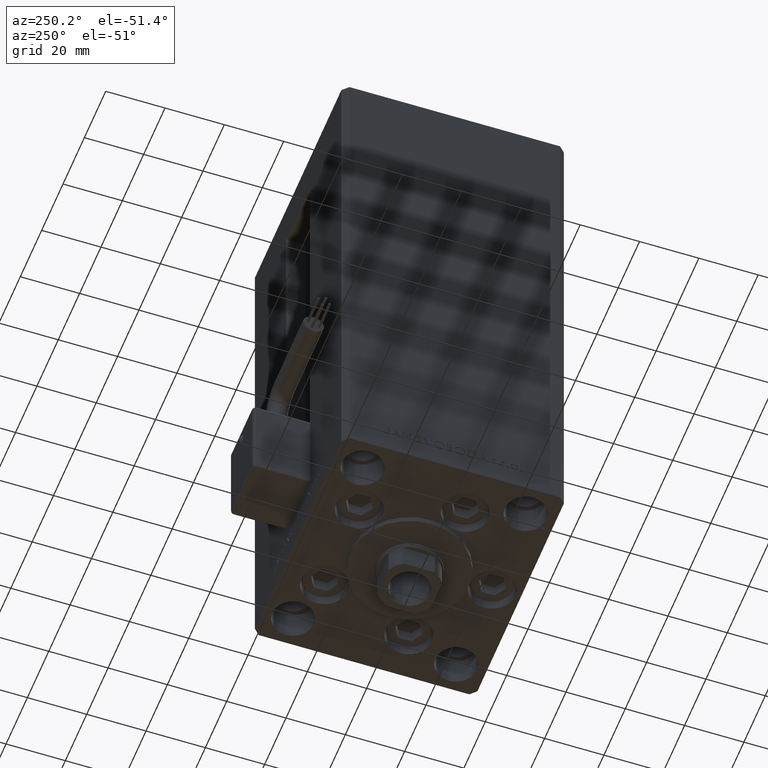
[diagram: clean part render]
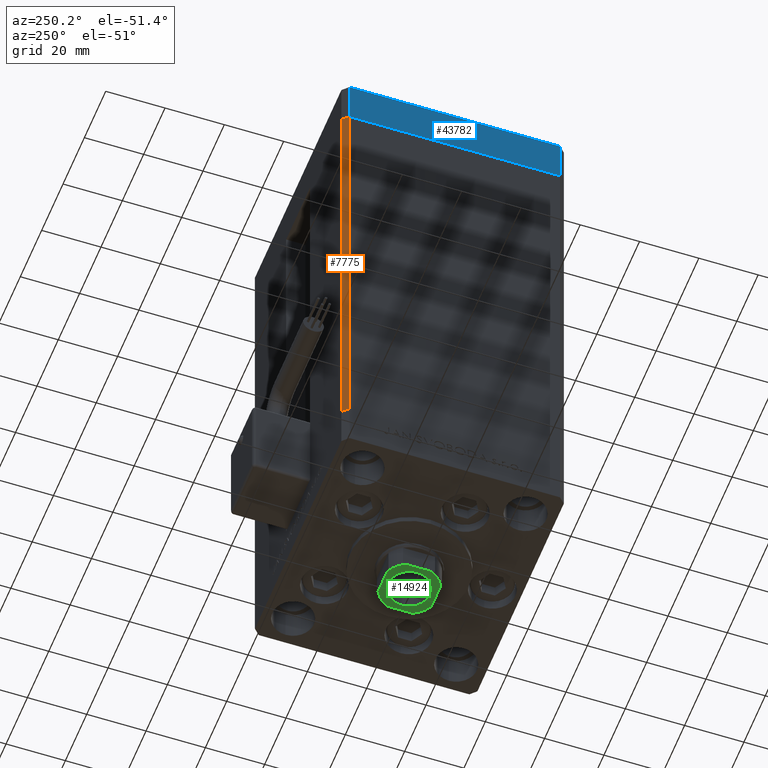
[diagram: same view with three faces highlighted in distinct colors, each labeled with its STEP entity id]
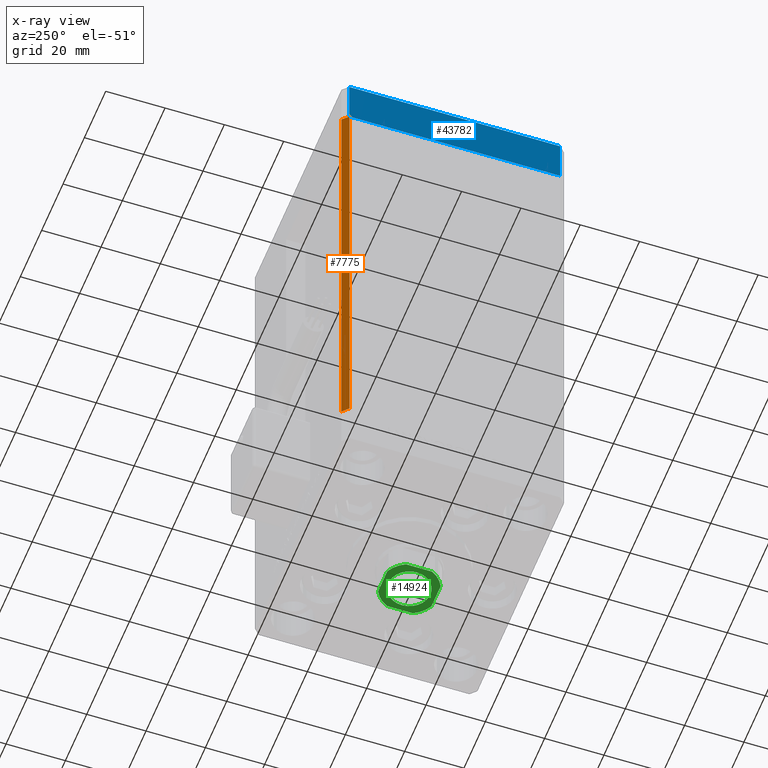
[diagram: x-ray of the same camera — body ghosted, the three highlighted faces saturated]
A machine part, auxiliary view with three faces highlighted in distinct colors.
The next image is the same camera in x-ray (body ghosted, the three faces saturated) — at least one of them is partly hidden behind the body in this view.
Their STEP definitions:

[orange] entity #7775 — the highlighted planar face has unit normal (0.7071, -0.7071, 0).
#218 = EDGE_CURVE ( 'NONE', #49731, #8988, #1046, .T. ) ;
#651 = VECTOR ( 'NONE', #45918, 1000.000000000000114 ) ;
#1046 = LINE ( 'NONE', #13459, #651 ) ;
#1083 = EDGE_LOOP ( 'NONE', ( #33683, #13638, #12552, #34902 ) ) ;
#1310 = DIRECTION ( 'NONE',  ( 0.7071067811865500152, 0.7071067811865451302, 0.000000000000000000 ) ) ;
#1402 = EDGE_CURVE ( 'NONE', #49731, #4354, #49830, .T. ) ;
#2081 = LINE ( 'NONE', #29815, #47194 ) ;
#2932 = CARTESIAN_POINT ( 'NONE',  ( -42.50000000000000711, 35.50000000000001421, 0.000000000000000000 ) ) ;
#4354 = VERTEX_POINT ( 'NONE', #11775 ) ;
#7775 = ADVANCED_FACE ( 'NONE', ( #45409 ), #36682, .F. ) ;
#8988 = VERTEX_POINT ( 'NONE', #37594 ) ;
#11288 = VERTEX_POINT ( 'NONE', #2932 ) ;
#11775 = CARTESIAN_POINT ( 'NONE',  ( -40.50000000000000000, 37.50000000000000711, 0.000000000000000000 ) ) ;
#11819 = DIRECTION ( 'NONE',  ( -0.7071067811865500152, -0.7071067811865451302, 0.000000000000000000 ) ) ;
#12552 = ORIENTED_EDGE ( 'NONE', *, *, #218, .F. ) ;
#13459 = CARTESIAN_POINT ( 'NONE',  ( -40.50000000000000000, 37.50000000000000711, 148.5000000000000000 ) ) ;
#13638 = ORIENTED_EDGE ( 'NONE', *, *, #49584, .F. ) ;
#17119 = CARTESIAN_POINT ( 'NONE',  ( -40.50000000000000000, 37.50000000000000711, 148.5000000000000000 ) ) ;
#18450 = DIRECTION ( 'NONE',  ( -0.000000000000000000, -0.000000000000000000, -1.000000000000000000 ) ) ;
#20179 = AXIS2_PLACEMENT_3D ( 'NONE', #25603, #41681, #1310 ) ;
#20949 = VECTOR ( 'NONE', #50090, 1000.000000000000000 ) ;
#25277 = CARTESIAN_POINT ( 'NONE',  ( -40.50000000000000000, 37.50000000000000711, 148.5000000000000000 ) ) ;
#25603 = CARTESIAN_POINT ( 'NONE',  ( -40.50000000000000000, 37.50000000000000711, 148.5000000000000000 ) ) ;
#29815 = CARTESIAN_POINT ( 'NONE',  ( -42.50000000000000711, 35.50000000000001421, 148.5000000000000000 ) ) ;
#33683 = ORIENTED_EDGE ( 'NONE', *, *, #51079, .T. ) ;
#34902 = ORIENTED_EDGE ( 'NONE', *, *, #1402, .T. ) ;
#36682 = PLANE ( 'NONE',  #20179 ) ;
#37594 = CARTESIAN_POINT ( 'NONE',  ( -42.50000000000000711, 35.50000000000001421, 148.5000000000000000 ) ) ;
#40482 = VECTOR ( 'NONE', #11819, 1000.000000000000114 ) ;
#41681 = DIRECTION ( 'NONE',  ( 0.7071067811865451302, -0.7071067811865500152, 0.000000000000000000 ) ) ;
#44275 = CARTESIAN_POINT ( 'NONE',  ( -40.50000000000000000, 37.50000000000000711, 0.000000000000000000 ) ) ;
#45409 = FACE_OUTER_BOUND ( 'NONE', #1083, .T. ) ;
#45918 = DIRECTION ( 'NONE',  ( -0.7071067811865500152, -0.7071067811865451302, 0.000000000000000000 ) ) ;
#47194 = VECTOR ( 'NONE', #18450, 1000.000000000000000 ) ;
#47977 = LINE ( 'NONE', #44275, #40482 ) ;
#49584 = EDGE_CURVE ( 'NONE', #8988, #11288, #2081, .T. ) ;
#49731 = VERTEX_POINT ( 'NONE', #25277 ) ;
#49830 = LINE ( 'NONE', #17119, #20949 ) ;
#50090 = DIRECTION ( 'NONE',  ( -0.000000000000000000, -0.000000000000000000, -1.000000000000000000 ) ) ;
#51079 = EDGE_CURVE ( 'NONE', #4354, #11288, #47977, .T. ) ;

[blue] entity #43782 — the highlighted planar face has unit normal (-1, -0, 0).
#1188 = EDGE_CURVE ( 'NONE', #13568, #21515, #12752, .T. ) ;
#4486 = PLANE ( 'NONE',  #41098 ) ;
#5609 = CARTESIAN_POINT ( 'NONE',  ( -42.50000000000000000, -35.50000000000000711, -15.00000000000000000 ) ) ;
#5870 = DIRECTION ( 'NONE',  ( 0.000000000000000000, 0.000000000000000000, 1.000000000000000000 ) ) ;
#6426 = VERTEX_POINT ( 'NONE', #33362 ) ;
#7362 = VERTEX_POINT ( 'NONE', #31992 ) ;
#8709 = DIRECTION ( 'NONE',  ( 9.773090005503140331E-17, -1.000000000000000000, 0.000000000000000000 ) ) ;
#10083 = EDGE_CURVE ( 'NONE', #7362, #6426, #25680, .T. ) ;
#10362 = EDGE_LOOP ( 'NONE', ( #41575, #37306, #46185, #21293 ) ) ;
#11014 = CARTESIAN_POINT ( 'NONE',  ( -42.50000000000000711, 35.49999999999997158, 0.000000000000000000 ) ) ;
#12400 = CARTESIAN_POINT ( 'NONE',  ( -42.50000000000000711, 35.49999999999997158, -15.00000000000000000 ) ) ;
#12752 = LINE ( 'NONE', #25149, #43675 ) ;
#13420 = DIRECTION ( 'NONE',  ( 9.773090005503140331E-17, -1.000000000000000000, 0.000000000000000000 ) ) ;
#13568 = VERTEX_POINT ( 'NONE', #34110 ) ;
#17375 = LINE ( 'NONE', #25555, #48177 ) ;
#21293 = ORIENTED_EDGE ( 'NONE', *, *, #10083, .T. ) ;
#21515 = VERTEX_POINT ( 'NONE', #38558 ) ;
#23621 = VECTOR ( 'NONE', #5870, 1000.000000000000000 ) ;
#24067 = EDGE_CURVE ( 'NONE', #13568, #7362, #17375, .T. ) ;
#25064 = FACE_OUTER_BOUND ( 'NONE', #10362, .T. ) ;
#25149 = CARTESIAN_POINT ( 'NONE',  ( -42.50000000000000711, 35.49999999999997158, -15.00000000000000000 ) ) ;
#25555 = CARTESIAN_POINT ( 'NONE',  ( -42.50000000000000711, 35.49999999999997158, -15.00000000000000000 ) ) ;
#25680 = LINE ( 'NONE', #5609, #23621 ) ;
#27616 = LINE ( 'NONE', #11014, #42853 ) ;
#31992 = CARTESIAN_POINT ( 'NONE',  ( -42.50000000000000000, -35.50000000000000711, -15.00000000000000000 ) ) ;
#33362 = CARTESIAN_POINT ( 'NONE',  ( -42.50000000000000000, -35.50000000000000711, 0.000000000000000000 ) ) ;
#34110 = CARTESIAN_POINT ( 'NONE',  ( -42.50000000000000711, 35.49999999999997158, -15.00000000000000000 ) ) ;
#36411 = DIRECTION ( 'NONE',  ( -1.000000000000000000, -9.773090005503140331E-17, 0.000000000000000000 ) ) ;
#37306 = ORIENTED_EDGE ( 'NONE', *, *, #1188, .F. ) ;
#38558 = CARTESIAN_POINT ( 'NONE',  ( -42.50000000000000711, 35.49999999999997158, 0.000000000000000000 ) ) ;
#41098 = AXIS2_PLACEMENT_3D ( 'NONE', #12400, #36411, #8709 ) ;
#41235 = DIRECTION ( 'NONE',  ( 0.000000000000000000, 0.000000000000000000, 1.000000000000000000 ) ) ;
#41575 = ORIENTED_EDGE ( 'NONE', *, *, #47047, .F. ) ;
#42853 = VECTOR ( 'NONE', #43209, 1000.000000000000000 ) ;
#43209 = DIRECTION ( 'NONE',  ( 9.773090005503140331E-17, -1.000000000000000000, 0.000000000000000000 ) ) ;
#43675 = VECTOR ( 'NONE', #41235, 1000.000000000000000 ) ;
#43782 = ADVANCED_FACE ( 'NONE', ( #25064 ), #4486, .T. ) ;
#46185 = ORIENTED_EDGE ( 'NONE', *, *, #24067, .T. ) ;
#47047 = EDGE_CURVE ( 'NONE', #21515, #6426, #27616, .T. ) ;
#48177 = VECTOR ( 'NONE', #13420, 1000.000000000000000 ) ;

[green] entity #14924 — the highlighted planar face has unit normal (0, 0, -1).
#941 = LINE ( 'NONE', #45290, #34407 ) ;
#1261 = CARTESIAN_POINT ( 'NONE',  ( 4.358898943540671311, -9.000000000000001776, 155.7500000000000000 ) ) ;
#1679 = EDGE_CURVE ( 'NONE', #45759, #34121, #941, .T. ) ;
#3316 = CARTESIAN_POINT ( 'NONE',  ( 4.358898943540677529, 8.999999999999998224, 155.7500000000000000 ) ) ;
#3688 = DIRECTION ( 'NONE',  ( 1.000000000000000000, 0.000000000000000000, 0.000000000000000000 ) ) ;
#4492 = EDGE_CURVE ( 'NONE', #49083, #10391, #9918, .T. ) ;
#4562 = ORIENTED_EDGE ( 'NONE', *, *, #47777, .T. ) ;
#4703 = CARTESIAN_POINT ( 'NONE',  ( 9.000000000000001776, -4.358898943540675752, 155.7500000000000000 ) ) ;
#4861 = CIRCLE ( 'NONE', #19185, 10.00000000000000000 ) ;
#7927 = EDGE_LOOP ( 'NONE', ( #32517, #9723, #4562, #49603, #28559, #15663, #20120, #35861 ) ) ;
#8375 = CARTESIAN_POINT ( 'NONE',  ( 0.000000000000000000, 0.000000000000000000, 155.7500000000000000 ) ) ;
#8865 = CARTESIAN_POINT ( 'NONE',  ( 0.000000000000000000, 0.000000000000000000, 155.7500000000000000 ) ) ;
#9723 = ORIENTED_EDGE ( 'NONE', *, *, #23608, .T. ) ;
#9848 = LINE ( 'NONE', #34381, #16457 ) ;
#9877 = CARTESIAN_POINT ( 'NONE',  ( 0.000000000000000000, 0.000000000000000000, 155.7500000000000000 ) ) ;
#9918 = CIRCLE ( 'NONE', #25112, 10.00000000000000000 ) ;
#10391 = VERTEX_POINT ( 'NONE', #33147 ) ;
#10881 = VECTOR ( 'NONE', #27451, 1000.000000000000000 ) ;
#11100 = LINE ( 'NONE', #47772, #10881 ) ;
#12280 = CARTESIAN_POINT ( 'NONE',  ( -9.000000000000000000, 8.999999999999998224, 155.7500000000000000 ) ) ;
#12337 = FACE_OUTER_BOUND ( 'NONE', #7927, .T. ) ;
#12581 = CIRCLE ( 'NONE', #41198, 10.00000000000000000 ) ;
#12615 = DIRECTION ( 'NONE',  ( 1.000000000000000000, 0.000000000000000000, 0.000000000000000000 ) ) ;
#12915 = CIRCLE ( 'NONE', #15437, 7.050000000000000711 ) ;
#13647 = CIRCLE ( 'NONE', #43118, 7.050000000000000711 ) ;
#13978 = EDGE_CURVE ( 'NONE', #15049, #49083, #23887, .T. ) ;
#14166 = DIRECTION ( 'NONE',  ( -0.000000000000000000, 0.000000000000000000, 1.000000000000000000 ) ) ;
#14924 = ADVANCED_FACE ( 'NONE', ( #20268, #12337 ), #28421, .T. ) ;
#15049 = VERTEX_POINT ( 'NONE', #3316 ) ;
#15437 = AXIS2_PLACEMENT_3D ( 'NONE', #36872, #24212, #12615 ) ;
#15663 = ORIENTED_EDGE ( 'NONE', *, *, #47864, .T. ) ;
#15699 = EDGE_CURVE ( 'NONE', #25457, #48068, #12915, .T. ) ;
#16123 = CIRCLE ( 'NONE', #47316, 10.00000000000000000 ) ;
#16457 = VECTOR ( 'NONE', #33870, 1000.000000000000000 ) ;
#17063 = DIRECTION ( 'NONE',  ( 1.000000000000000000, 0.000000000000000000, 0.000000000000000000 ) ) ;
#19132 = CARTESIAN_POINT ( 'NONE',  ( 9.000000000000000000, 4.358898943540675752, 155.7500000000000000 ) ) ;
#19185 = AXIS2_PLACEMENT_3D ( 'NONE', #23114, #14166, #33237 ) ;
#19641 = VERTEX_POINT ( 'NONE', #47582 ) ;
#20120 = ORIENTED_EDGE ( 'NONE', *, *, #13978, .T. ) ;
#20268 = FACE_BOUND ( 'NONE', #27324, .T. ) ;
#20532 = DIRECTION ( 'NONE',  ( 1.000000000000000000, 0.000000000000000000, 0.000000000000000000 ) ) ;
#20730 = DIRECTION ( 'NONE',  ( -1.000000000000000000, -0.000000000000000000, -0.000000000000000000 ) ) ;
#23100 = CARTESIAN_POINT ( 'NONE',  ( -7.050000000000000711, 8.633759933988840961E-16, 155.7500000000000000 ) ) ;
#23114 = CARTESIAN_POINT ( 'NONE',  ( 0.000000000000000000, 0.000000000000000000, 155.7500000000000000 ) ) ;
#23608 = EDGE_CURVE ( 'NONE', #23988, #19641, #16123, .T. ) ;
#23748 = CARTESIAN_POINT ( 'NONE',  ( 0.000000000000000000, 0.000000000000000000, 155.7500000000000000 ) ) ;
#23887 = LINE ( 'NONE', #12280, #35548 ) ;
#23988 = VERTEX_POINT ( 'NONE', #27665 ) ;
#24123 = ORIENTED_EDGE ( 'NONE', *, *, #15699, .T. ) ;
#24212 = DIRECTION ( 'NONE',  ( 0.000000000000000000, -0.000000000000000000, -1.000000000000000000 ) ) ;
#24298 = EDGE_CURVE ( 'NONE', #48068, #25457, #13647, .T. ) ;
#24341 = CARTESIAN_POINT ( 'NONE',  ( -4.358898943540678417, 8.999999999999998224, 155.7500000000000000 ) ) ;
#24474 = DIRECTION ( 'NONE',  ( -0.000000000000000000, 0.000000000000000000, 1.000000000000000000 ) ) ;
#24962 = DIRECTION ( 'NONE',  ( -9.637352644315595243E-17, 1.000000000000000000, -0.000000000000000000 ) ) ;
#25112 = AXIS2_PLACEMENT_3D ( 'NONE', #38649, #25753, #30206 ) ;
#25457 = VERTEX_POINT ( 'NONE', #27683 ) ;
#25753 = DIRECTION ( 'NONE',  ( -0.000000000000000000, 0.000000000000000000, 1.000000000000000000 ) ) ;
#27324 = EDGE_LOOP ( 'NONE', ( #24123, #40770 ) ) ;
#27451 = DIRECTION ( 'NONE',  ( 1.000000000000000000, 0.000000000000000000, 0.000000000000000000 ) ) ;
#27665 = CARTESIAN_POINT ( 'NONE',  ( -9.000000000000000000, -4.358898943540675752, 155.7500000000000000 ) ) ;
#27683 = CARTESIAN_POINT ( 'NONE',  ( 7.050000000000000711, 0.000000000000000000, 155.7500000000000000 ) ) ;
#28421 = PLANE ( 'NONE',  #36432 ) ;
#28559 = ORIENTED_EDGE ( 'NONE', *, *, #1679, .T. ) ;
#29444 = DIRECTION ( 'NONE',  ( 0.000000000000000000, -0.000000000000000000, -1.000000000000000000 ) ) ;
#30206 = DIRECTION ( 'NONE',  ( 1.000000000000000000, 0.000000000000000000, 0.000000000000000000 ) ) ;
#32517 = ORIENTED_EDGE ( 'NONE', *, *, #35355, .T. ) ;
#33147 = CARTESIAN_POINT ( 'NONE',  ( -9.000000000000000000, 4.358898943540674864, 155.7500000000000000 ) ) ;
#33237 = DIRECTION ( 'NONE',  ( 1.000000000000000000, 0.000000000000000000, 0.000000000000000000 ) ) ;
#33870 = DIRECTION ( 'NONE',  ( 9.637352644315595243E-17, -1.000000000000000000, 0.000000000000000000 ) ) ;
#33899 = DIRECTION ( 'NONE',  ( 1.000000000000000000, 0.000000000000000000, 0.000000000000000000 ) ) ;
#34121 = VERTEX_POINT ( 'NONE', #19132 ) ;
#34157 = DIRECTION ( 'NONE',  ( -0.000000000000000000, 0.000000000000000000, 1.000000000000000000 ) ) ;
#34381 = CARTESIAN_POINT ( 'NONE',  ( -9.000000000000000000, 8.999999999999998224, 155.7500000000000000 ) ) ;
#34407 = VECTOR ( 'NONE', #24962, 1000.000000000000000 ) ;
#35355 = EDGE_CURVE ( 'NONE', #10391, #23988, #9848, .T. ) ;
#35548 = VECTOR ( 'NONE', #20730, 1000.000000000000000 ) ;
#35861 = ORIENTED_EDGE ( 'NONE', *, *, #4492, .T. ) ;
#36432 = AXIS2_PLACEMENT_3D ( 'NONE', #8375, #24474, #20532 ) ;
#36872 = CARTESIAN_POINT ( 'NONE',  ( 0.000000000000000000, 0.000000000000000000, 155.7500000000000000 ) ) ;
#38649 = CARTESIAN_POINT ( 'NONE',  ( 0.000000000000000000, 0.000000000000000000, 155.7500000000000000 ) ) ;
#39849 = DIRECTION ( 'NONE',  ( -0.000000000000000000, 0.000000000000000000, 1.000000000000000000 ) ) ;
#40770 = ORIENTED_EDGE ( 'NONE', *, *, #24298, .T. ) ;
#41198 = AXIS2_PLACEMENT_3D ( 'NONE', #23748, #39849, #3688 ) ;
#43118 = AXIS2_PLACEMENT_3D ( 'NONE', #8865, #29444, #17063 ) ;
#43870 = EDGE_CURVE ( 'NONE', #44469, #45759, #4861, .T. ) ;
#44469 = VERTEX_POINT ( 'NONE', #1261 ) ;
#45290 = CARTESIAN_POINT ( 'NONE',  ( 9.000000000000000000, 8.999999999999998224, 155.7500000000000000 ) ) ;
#45759 = VERTEX_POINT ( 'NONE', #4703 ) ;
#47316 = AXIS2_PLACEMENT_3D ( 'NONE', #9877, #34157, #33899 ) ;
#47582 = CARTESIAN_POINT ( 'NONE',  ( -4.358898943540671311, -9.000000000000001776, 155.7500000000000000 ) ) ;
#47772 = CARTESIAN_POINT ( 'NONE',  ( -8.999999999999998224, -9.000000000000001776, 155.7500000000000000 ) ) ;
#47777 = EDGE_CURVE ( 'NONE', #19641, #44469, #11100, .T. ) ;
#47864 = EDGE_CURVE ( 'NONE', #34121, #15049, #12581, .T. ) ;
#48068 = VERTEX_POINT ( 'NONE', #23100 ) ;
#49083 = VERTEX_POINT ( 'NONE', #24341 ) ;
#49603 = ORIENTED_EDGE ( 'NONE', *, *, #43870, .T. ) ;